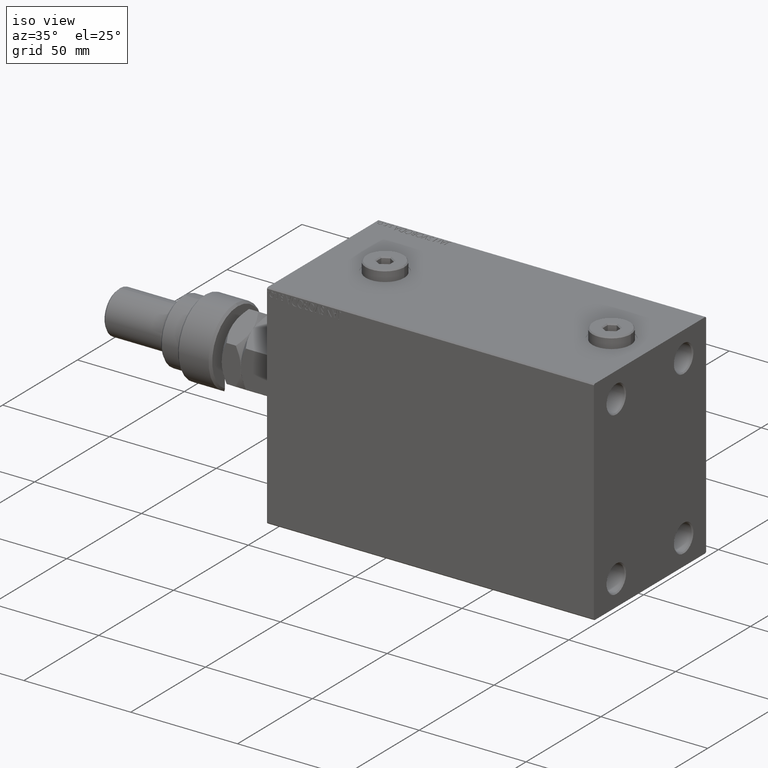
[diagram: clean part render]
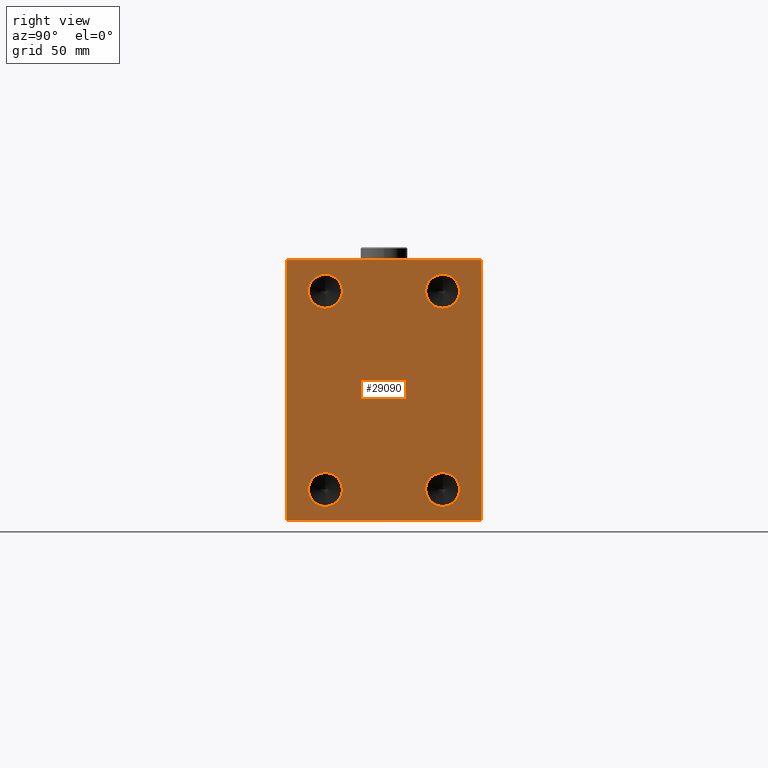
[diagram: tour spotlight — one face highlighted and labeled with its STEP entity id]
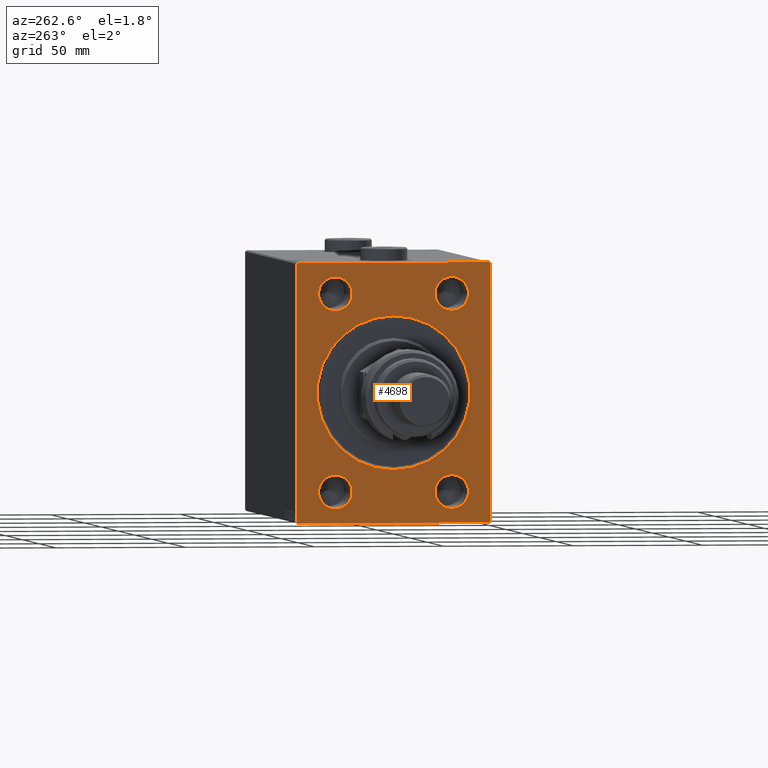
[diagram: tour spotlight — one face highlighted and labeled with its STEP entity id]
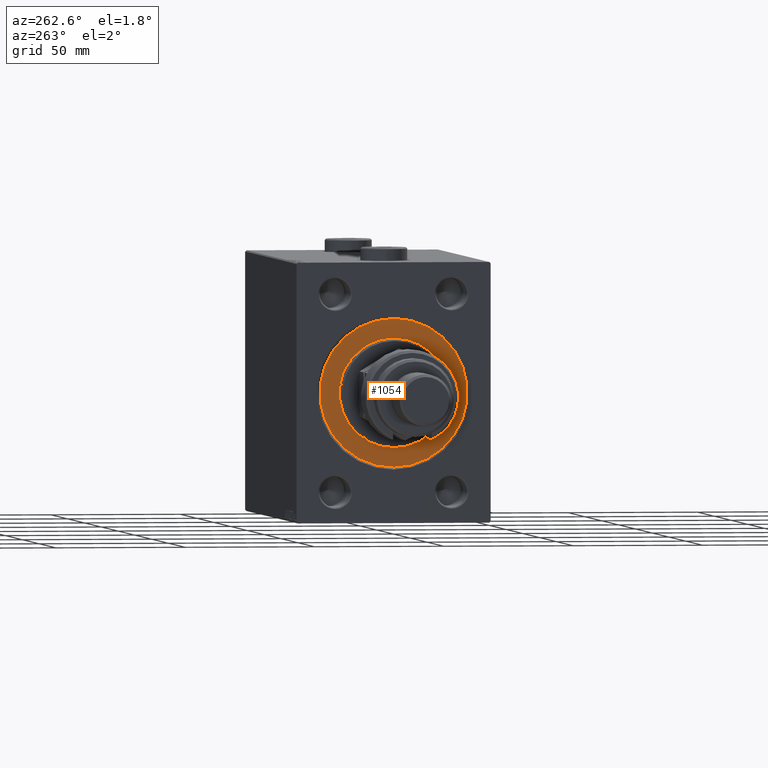
[diagram: tour spotlight — one face highlighted and labeled with its STEP entity id]
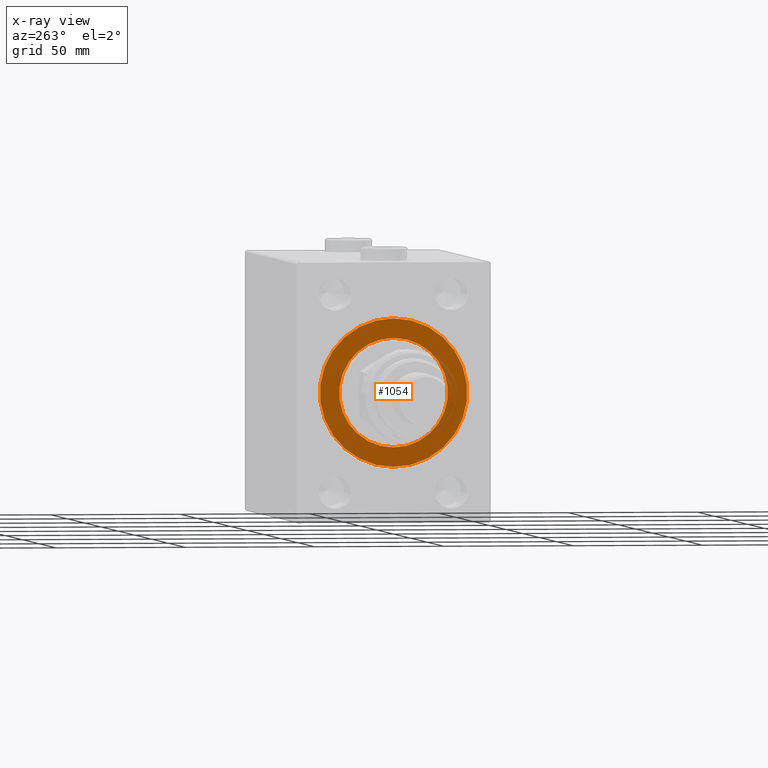
[diagram: x-ray of the same camera — body ghosted, this tour face saturated]
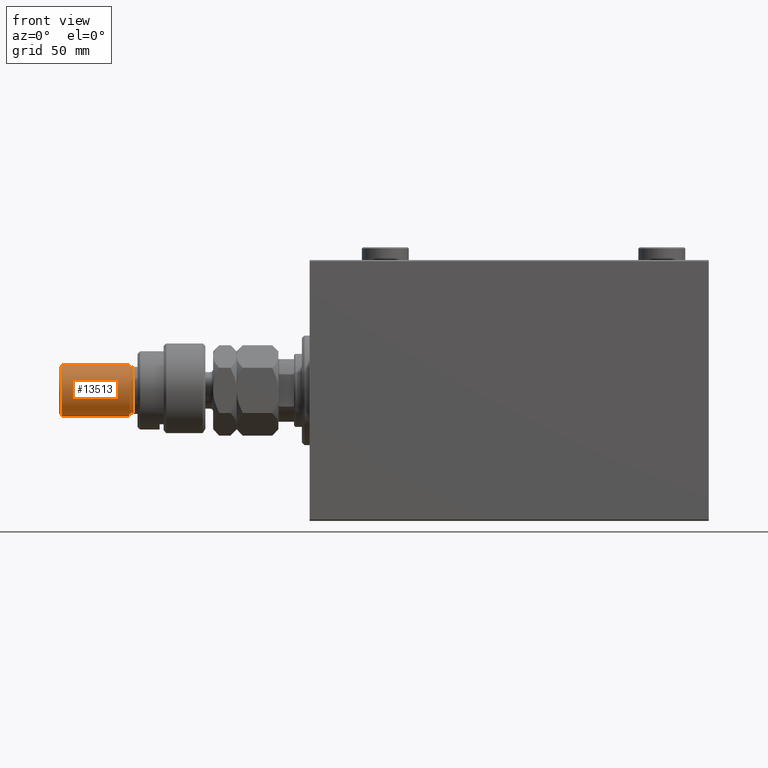
[diagram: tour spotlight — one face highlighted and labeled with its STEP entity id]
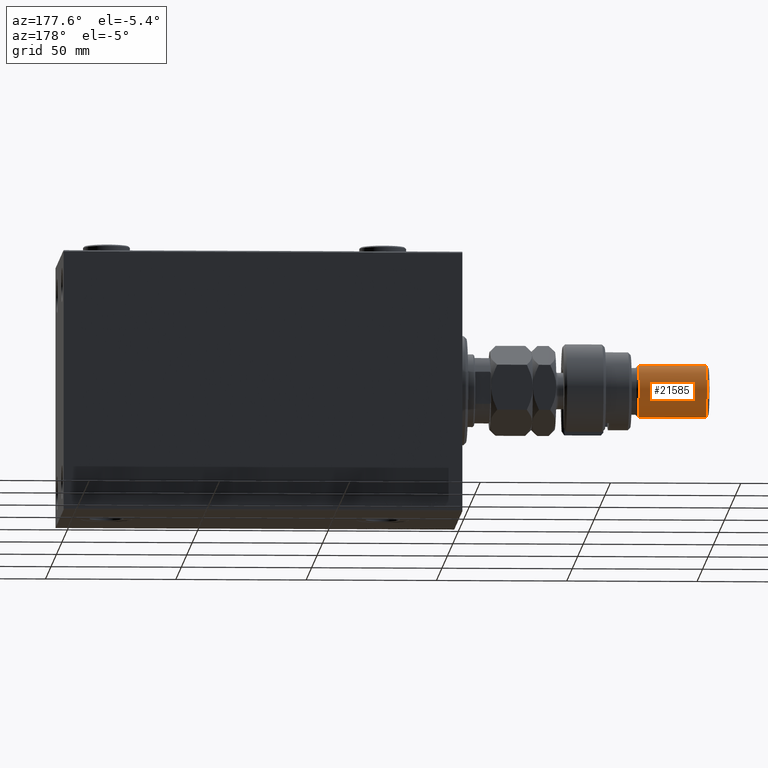
[diagram: tour spotlight — one face highlighted and labeled with its STEP entity id]
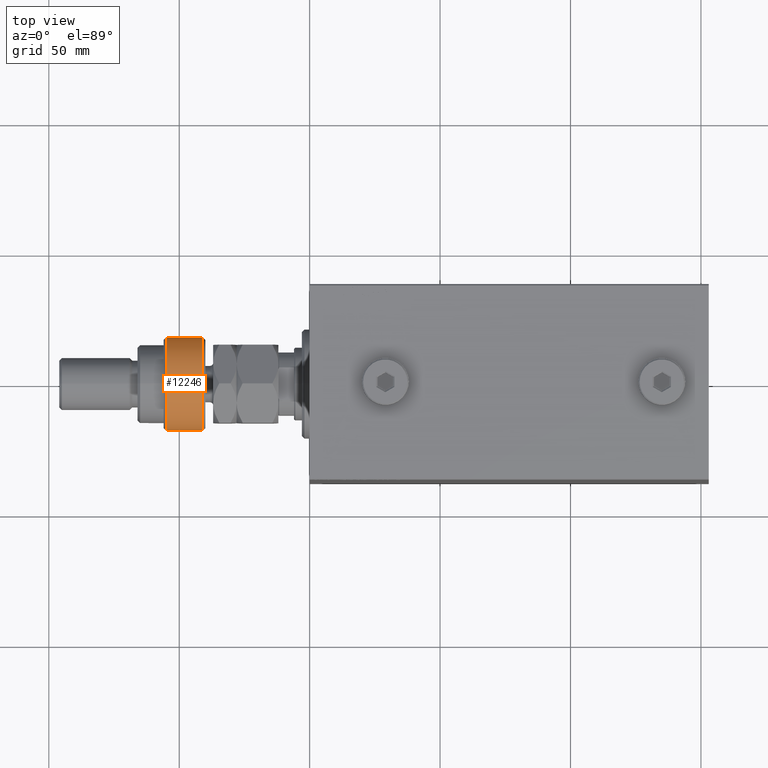
[diagram: tour spotlight — one face highlighted and labeled with its STEP entity id]
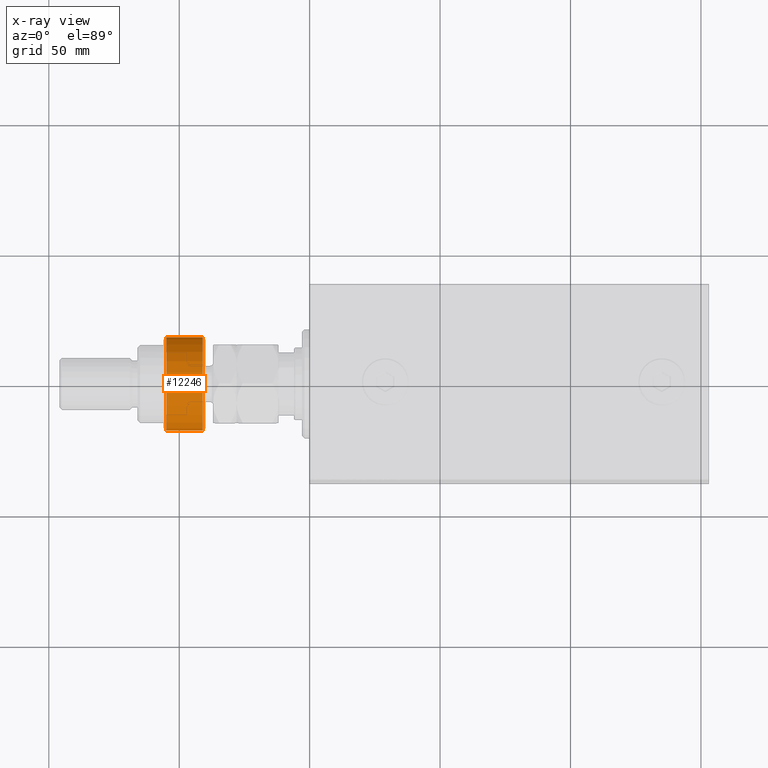
[diagram: x-ray of the same camera — body ghosted, this tour face saturated]
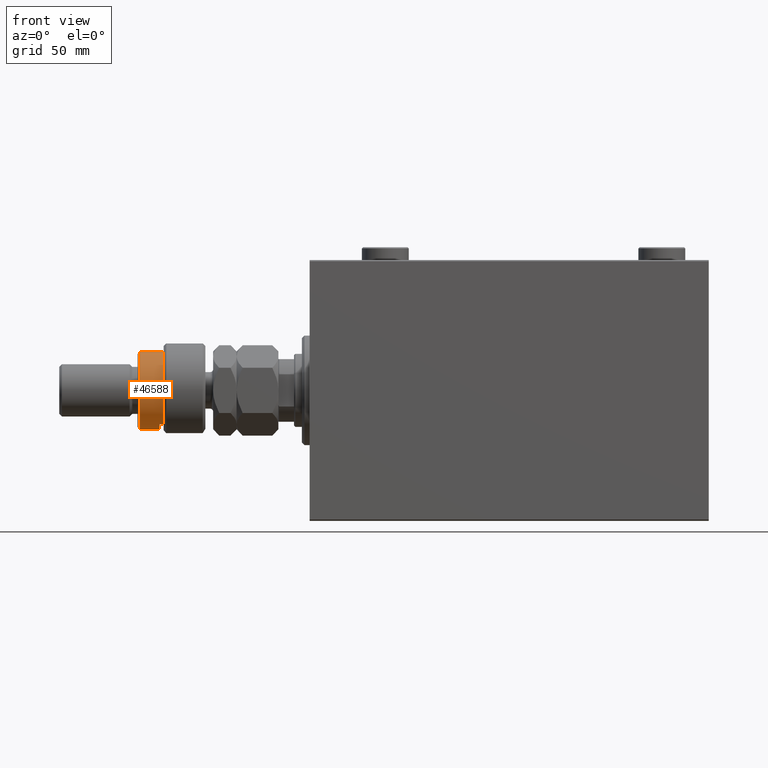
[diagram: tour spotlight — one face highlighted and labeled with its STEP entity id]
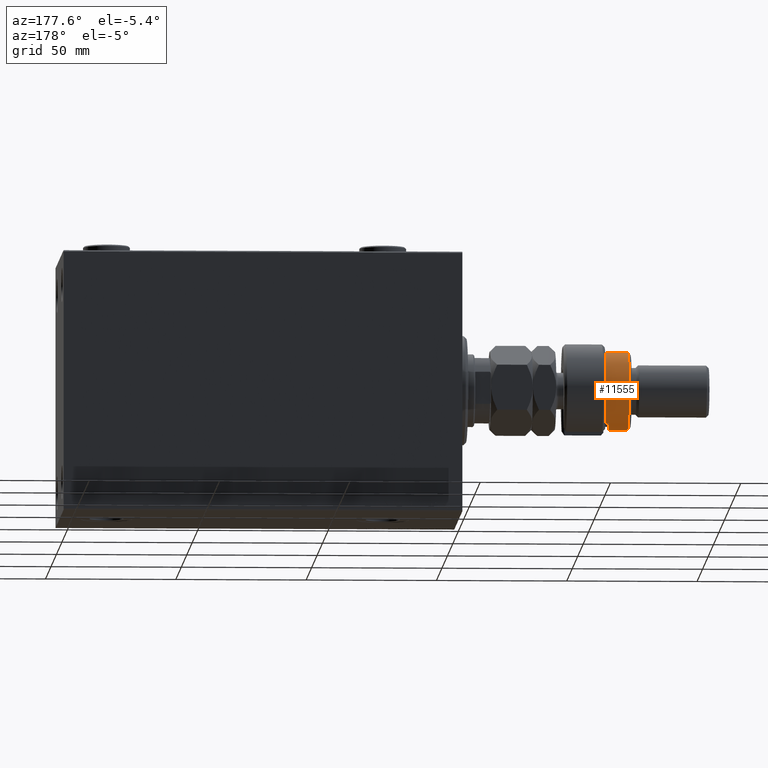
[diagram: tour spotlight — one face highlighted and labeled with its STEP entity id]
A machine part: a face-by-face anatomy tour. The part has 1023 B-rep faces; the first image is the clean iso view, then the 8 largest visible faces are spotlighted one at a time (largest first), each with its STEP entity span.

Face 1 — right view, entity #29090. In plain terms, the highlighted planar face has unit normal (1, 0, 0).
Definition (entity closure, byte-faithful):
#173 = LINE ( 'NONE', #15373, #42288 ) ;
#837 = DIRECTION ( 'NONE',  ( 0.000000000000000000, 0.000000000000000000, -1.000000000000000000 ) ) ;
#1016 = AXIS2_PLACEMENT_3D ( 'NONE', #3604, #22956, #25899 ) ;
#1073 = CARTESIAN_POINT ( 'NONE',  ( 153.0000000000000000, 43.50000000000128608, -43.49999999999826628 ) ) ;
#1182 = DIRECTION ( 'NONE',  ( 0.000000000000000000, 0.000000000000000000, -1.000000000000000000 ) ) ;
#1738 = EDGE_CURVE ( 'NONE', #30340, #21826, #22872, .T. ) ;
#1989 = FACE_OUTER_BOUND ( 'NONE', #25766, .T. ) ;
#3201 = DIRECTION ( 'NONE',  ( -0.000000000000000000, 0.7071067811865474617, -0.7071067811865474617 ) ) ;
#3604 = CARTESIAN_POINT ( 'NONE',  ( 153.0000000000000000, -22.50000000000000000, -38.00000000000000711 ) ) ;
#4046 = EDGE_CURVE ( 'NONE', #7656, #31678, #7974, .T. ) ;
#4695 = VERTEX_POINT ( 'NONE', #38695 ) ;
#5027 = VECTOR ( 'NONE', #34096, 999.9999999999998863 ) ;
#5765 = ORIENTED_EDGE ( 'NONE', *, *, #24210, .F. ) ;
#6114 = AXIS2_PLACEMENT_3D ( 'NONE', #23927, #13358, #6255 ) ;
#6255 = DIRECTION ( 'NONE',  ( 0.000000000000000000, 0.000000000000000000, -1.000000000000000000 ) ) ;
#6415 = VECTOR ( 'NONE', #38564, 1000.000000000000000 ) ;
#6425 = ORIENTED_EDGE ( 'NONE', *, *, #8942, .T. ) ;
#6529 = EDGE_CURVE ( 'NONE', #32694, #18322, #16168, .T. ) ;
#6544 = DIRECTION ( 'NONE',  ( 0.000000000000000000, -1.000000000000000000, -2.775557561562891844E-16 ) ) ;
#6555 = VECTOR ( 'NONE', #6544, 1000.000000000000000 ) ;
#7589 = EDGE_LOOP ( 'NONE', ( #44958, #17797 ) ) ;
#7656 = VERTEX_POINT ( 'NONE', #25641 ) ;
#7911 = AXIS2_PLACEMENT_3D ( 'NONE', #46901, #13026, #27968 ) ;
#7974 = LINE ( 'NONE', #8450, #22952 ) ;
#8358 = DIRECTION ( 'NONE',  ( 1.000000000000000000, -0.000000000000000000, -0.000000000000000000 ) ) ;
#8416 = DIRECTION ( 'NONE',  ( -0.000000000000000000, 0.7071067811865230368, 0.7071067811865721087 ) ) ;
#8450 = CARTESIAN_POINT ( 'NONE',  ( 153.0000000000000000, -43.49999999999869260, 43.50000000000171241 ) ) ;
#8837 = CIRCLE ( 'NONE', #1016, 6.500000000000005329 ) ;
#8942 = EDGE_CURVE ( 'NONE', #18322, #7656, #13399, .T. ) ;
#9265 = EDGE_CURVE ( 'NONE', #21826, #11525, #27523, .T. ) ;
#9299 = CARTESIAN_POINT ( 'NONE',  ( 153.0000000000000000, -22.50000000000000000, -38.00000000000000711 ) ) ;
#9828 = VERTEX_POINT ( 'NONE', #11262 ) ;
#10160 = DIRECTION ( 'NONE',  ( 0.000000000000000000, 0.000000000000000000, -1.000000000000000000 ) ) ;
#10347 = ORIENTED_EDGE ( 'NONE', *, *, #1738, .T. ) ;
#10454 = DIRECTION ( 'NONE',  ( 0.000000000000000000, 0.000000000000000000, -1.000000000000000000 ) ) ;
#11262 = CARTESIAN_POINT ( 'NONE',  ( 153.0000000000000000, 22.50000000000000000, -31.50000000000000000 ) ) ;
#11303 = CARTESIAN_POINT ( 'NONE',  ( 153.0000000000000000, 22.50000000000000000, 37.99999999999999289 ) ) ;
#11525 = VERTEX_POINT ( 'NONE', #36171 ) ;
#11968 = AXIS2_PLACEMENT_3D ( 'NONE', #25659, #24921, #10454 ) ;
#12256 = EDGE_LOOP ( 'NONE', ( #28977, #12920 ) ) ;
#12457 = CARTESIAN_POINT ( 'NONE',  ( 153.0000000000000000, -22.50000000000000000, 31.49999999999998579 ) ) ;
#12460 = CARTESIAN_POINT ( 'NONE',  ( 153.0000000000000000, 36.99999999999999289, 50.00000000000000711 ) ) ;
#12789 = FACE_BOUND ( 'NONE', #30140, .T. ) ;
#12920 = ORIENTED_EDGE ( 'NONE', *, *, #18125, .F. ) ;
#13026 = DIRECTION ( 'NONE',  ( 1.000000000000000000, 0.000000000000000000, 0.000000000000000000 ) ) ;
#13358 = DIRECTION ( 'NONE',  ( 1.000000000000000000, -0.000000000000000000, -0.000000000000000000 ) ) ;
#13399 = LINE ( 'NONE', #39438, #6555 ) ;
#14497 = CARTESIAN_POINT ( 'NONE',  ( 153.0000000000000000, 22.50000000000000000, 44.50000000000000000 ) ) ;
#14826 = CARTESIAN_POINT ( 'NONE',  ( 153.0000000000000000, -37.50000000000000000, 49.99999999999998579 ) ) ;
#15373 = CARTESIAN_POINT ( 'NONE',  ( 153.0000000000000000, 37.50000000000000711, -50.00000000000000000 ) ) ;
#15626 = CARTESIAN_POINT ( 'NONE',  ( 153.0000000000000000, -37.50000000000000000, 49.49999999999998579 ) ) ;
#16056 = EDGE_CURVE ( 'NONE', #31678, #4695, #47740, .T. ) ;
#16059 = DIRECTION ( 'NONE',  ( 0.000000000000000000, -0.7071067811865721087, -0.7071067811865230368 ) ) ;
#16164 = VERTEX_POINT ( 'NONE', #24572 ) ;
#16168 = LINE ( 'NONE', #45154, #5027 ) ;
#16670 = DIRECTION ( 'NONE',  ( 0.000000000000000000, 0.000000000000000000, -1.000000000000000000 ) ) ;
#16753 = EDGE_CURVE ( 'NONE', #24410, #35402, #38274, .T. ) ;
#17797 = ORIENTED_EDGE ( 'NONE', *, *, #37534, .F. ) ;
#18061 = CARTESIAN_POINT ( 'NONE',  ( 153.0000000000000000, 37.00000000000001421, -50.00000000000000000 ) ) ;
#18125 = EDGE_CURVE ( 'NONE', #48393, #43738, #30433, .T. ) ;
#18322 = VERTEX_POINT ( 'NONE', #12460 ) ;
#18949 = CARTESIAN_POINT ( 'NONE',  ( 153.0000000000000000, -37.50000000000000000, -50.00000000000000000 ) ) ;
#19538 = AXIS2_PLACEMENT_3D ( 'NONE', #19947, #30509, #837 ) ;
#19947 = CARTESIAN_POINT ( 'NONE',  ( 153.0000000000000000, -22.50000000000000000, 37.99999999999999289 ) ) ;
#20034 = ORIENTED_EDGE ( 'NONE', *, *, #16753, .F. ) ;
#20153 = FACE_BOUND ( 'NONE', #39734, .T. ) ;
#21031 = AXIS2_PLACEMENT_3D ( 'NONE', #9299, #39978, #24258 ) ;
#21826 = VERTEX_POINT ( 'NONE', #18061 ) ;
#21837 = LINE ( 'NONE', #36804, #31892 ) ;
#22186 = AXIS2_PLACEMENT_3D ( 'NONE', #41997, #8358, #16670 ) ;
#22872 = LINE ( 'NONE', #18949, #6415 ) ;
#22952 = VECTOR ( 'NONE', #16059, 1000.000000000000000 ) ;
#22956 = DIRECTION ( 'NONE',  ( 1.000000000000000000, -0.000000000000000000, -0.000000000000000000 ) ) ;
#23850 = EDGE_CURVE ( 'NONE', #11525, #32694, #173, .T. ) ;
#23927 = CARTESIAN_POINT ( 'NONE',  ( 153.0000000000000000, -22.50000000000000000, 37.99999999999999289 ) ) ;
#24062 = FACE_BOUND ( 'NONE', #7589, .T. ) ;
#24210 = EDGE_CURVE ( 'NONE', #35402, #24410, #48567, .T. ) ;
#24258 = DIRECTION ( 'NONE',  ( 0.000000000000000000, 0.000000000000000000, -1.000000000000000000 ) ) ;
#24410 = VERTEX_POINT ( 'NONE', #47670 ) ;
#24572 = CARTESIAN_POINT ( 'NONE',  ( 153.0000000000000000, 22.50000000000000000, 31.49999999999998579 ) ) ;
#24921 = DIRECTION ( 'NONE',  ( 1.000000000000000000, -0.000000000000000000, -0.000000000000000000 ) ) ;
#25535 = CARTESIAN_POINT ( 'NONE',  ( 153.0000000000000000, -22.50000000000000000, -31.50000000000000000 ) ) ;
#25641 = CARTESIAN_POINT ( 'NONE',  ( 153.0000000000000000, -36.99999999999996447, 49.99999999999998579 ) ) ;
#25659 = CARTESIAN_POINT ( 'NONE',  ( 153.0000000000000000, 22.50000000000000000, -38.00000000000000711 ) ) ;
#25766 = EDGE_LOOP ( 'NONE', ( #6425, #39948, #28535, #48134, #10347, #28378, #43731, #25884 ) ) ;
#25884 = ORIENTED_EDGE ( 'NONE', *, *, #6529, .T. ) ;
#25899 = DIRECTION ( 'NONE',  ( 0.000000000000000000, 0.000000000000000000, -1.000000000000000000 ) ) ;
#26162 = VECTOR ( 'NONE', #8416, 1000.000000000000000 ) ;
#26256 = DIRECTION ( 'NONE',  ( 0.000000000000000000, 0.000000000000000000, -1.000000000000000000 ) ) ;
#27089 = CARTESIAN_POINT ( 'NONE',  ( 153.0000000000000000, 37.49999999999999289, 49.50000000000000000 ) ) ;
#27523 = LINE ( 'NONE', #1073, #26162 ) ;
#27968 = DIRECTION ( 'NONE',  ( 0.000000000000000000, 0.000000000000000000, -1.000000000000000000 ) ) ;
#28354 = CIRCLE ( 'NONE', #11968, 6.500000000000005329 ) ;
#28378 = ORIENTED_EDGE ( 'NONE', *, *, #9265, .T. ) ;
#28393 = CIRCLE ( 'NONE', #34689, 6.500000000000005329 ) ;
#28535 = ORIENTED_EDGE ( 'NONE', *, *, #16056, .T. ) ;
#28977 = ORIENTED_EDGE ( 'NONE', *, *, #35693, .F. ) ;
#29090 = ADVANCED_FACE ( 'NONE', ( #20153, #12789, #42751, #24062, #1989 ), #46664, .T. ) ;
#30140 = EDGE_LOOP ( 'NONE', ( #20034, #5765 ) ) ;
#30340 = VERTEX_POINT ( 'NONE', #44645 ) ;
#30433 = CIRCLE ( 'NONE', #21031, 6.500000000000005329 ) ;
#30509 = DIRECTION ( 'NONE',  ( 1.000000000000000000, -0.000000000000000000, -0.000000000000000000 ) ) ;
#30727 = AXIS2_PLACEMENT_3D ( 'NONE', #46801, #35498, #1182 ) ;
#31678 = VERTEX_POINT ( 'NONE', #15626 ) ;
#31892 = VECTOR ( 'NONE', #3201, 1000.000000000000114 ) ;
#32694 = VERTEX_POINT ( 'NONE', #27089 ) ;
#33279 = VERTEX_POINT ( 'NONE', #14497 ) ;
#33378 = EDGE_CURVE ( 'NONE', #33279, #16164, #28393, .T. ) ;
#34096 = DIRECTION ( 'NONE',  ( -0.000000000000000000, -0.7071067811865425767, 0.7071067811865525687 ) ) ;
#34689 = AXIS2_PLACEMENT_3D ( 'NONE', #11303, #45181, #26256 ) ;
#35170 = CARTESIAN_POINT ( 'NONE',  ( 153.0000000000000000, -22.50000000000000000, -44.50000000000001421 ) ) ;
#35402 = VERTEX_POINT ( 'NONE', #12457 ) ;
#35498 = DIRECTION ( 'NONE',  ( 1.000000000000000000, -0.000000000000000000, -0.000000000000000000 ) ) ;
#35522 = EDGE_CURVE ( 'NONE', #16164, #33279, #39349, .T. ) ;
#35639 = EDGE_CURVE ( 'NONE', #9828, #46585, #28354, .T. ) ;
#35693 = EDGE_CURVE ( 'NONE', #43738, #48393, #8837, .T. ) ;
#36171 = CARTESIAN_POINT ( 'NONE',  ( 153.0000000000000000, 37.50000000000000711, -49.49999999999997158 ) ) ;
#36804 = CARTESIAN_POINT ( 'NONE',  ( 153.0000000000000000, -43.50000000000000711, -43.50000000000000711 ) ) ;
#37534 = EDGE_CURVE ( 'NONE', #46585, #9828, #44135, .T. ) ;
#38274 = CIRCLE ( 'NONE', #6114, 6.500000000000005329 ) ;
#38564 = DIRECTION ( 'NONE',  ( 0.000000000000000000, 1.000000000000000000, 0.000000000000000000 ) ) ;
#38695 = CARTESIAN_POINT ( 'NONE',  ( 153.0000000000000000, -37.50000000000000000, -49.49999999999997158 ) ) ;
#39349 = CIRCLE ( 'NONE', #30727, 6.500000000000005329 ) ;
#39438 = CARTESIAN_POINT ( 'NONE',  ( 153.0000000000000000, 37.49999999999999289, 50.00000000000000711 ) ) ;
#39690 = VECTOR ( 'NONE', #10160, 1000.000000000000000 ) ;
#39734 = EDGE_LOOP ( 'NONE', ( #43264, #40589 ) ) ;
#39948 = ORIENTED_EDGE ( 'NONE', *, *, #4046, .T. ) ;
#39978 = DIRECTION ( 'NONE',  ( 1.000000000000000000, -0.000000000000000000, -0.000000000000000000 ) ) ;
#40589 = ORIENTED_EDGE ( 'NONE', *, *, #35522, .F. ) ;
#41997 = CARTESIAN_POINT ( 'NONE',  ( 153.0000000000000000, 22.50000000000000000, -38.00000000000000711 ) ) ;
#42288 = VECTOR ( 'NONE', #48528, 1000.000000000000000 ) ;
#42751 = FACE_BOUND ( 'NONE', #12256, .T. ) ;
#43264 = ORIENTED_EDGE ( 'NONE', *, *, #33378, .F. ) ;
#43731 = ORIENTED_EDGE ( 'NONE', *, *, #23850, .T. ) ;
#43738 = VERTEX_POINT ( 'NONE', #25535 ) ;
#44135 = CIRCLE ( 'NONE', #22186, 6.500000000000005329 ) ;
#44645 = CARTESIAN_POINT ( 'NONE',  ( 153.0000000000000000, -37.00000000000000000, -50.00000000000000000 ) ) ;
#44958 = ORIENTED_EDGE ( 'NONE', *, *, #35639, .F. ) ;
#45154 = CARTESIAN_POINT ( 'NONE',  ( 153.0000000000000000, 43.50000000000026290, 43.49999999999965894 ) ) ;
#45181 = DIRECTION ( 'NONE',  ( 1.000000000000000000, -0.000000000000000000, -0.000000000000000000 ) ) ;
#45459 = CARTESIAN_POINT ( 'NONE',  ( 153.0000000000000000, 22.50000000000000000, -44.50000000000001421 ) ) ;
#46585 = VERTEX_POINT ( 'NONE', #45459 ) ;
#46664 = PLANE ( 'NONE',  #7911 ) ;
#46801 = CARTESIAN_POINT ( 'NONE',  ( 153.0000000000000000, 22.50000000000000000, 37.99999999999999289 ) ) ;
#46901 = CARTESIAN_POINT ( 'NONE',  ( 153.0000000000000000, 0.000000000000000000, 0.000000000000000000 ) ) ;
#47670 = CARTESIAN_POINT ( 'NONE',  ( 153.0000000000000000, -22.50000000000000000, 44.50000000000000000 ) ) ;
#47740 = LINE ( 'NONE', #14826, #39690 ) ;
#47996 = EDGE_CURVE ( 'NONE', #4695, #30340, #21837, .T. ) ;
#48134 = ORIENTED_EDGE ( 'NONE', *, *, #47996, .T. ) ;
#48393 = VERTEX_POINT ( 'NONE', #35170 ) ;
#48528 = DIRECTION ( 'NONE',  ( 0.000000000000000000, -1.387778780781445676E-16, 1.000000000000000000 ) ) ;
#48567 = CIRCLE ( 'NONE', #19538, 6.500000000000005329 ) ;

Face 2 — auxiliary view, entity #4698. In plain terms, the highlighted planar face has unit normal (1, 0, 0).
Definition (entity closure, byte-faithful):
#345 = VERTEX_POINT ( 'NONE', #11151 ) ;
#391 = CARTESIAN_POINT ( 'NONE',  ( 0.000000000000000000, 37.50000000000000711, -49.49999999999997158 ) ) ;
#678 = VERTEX_POINT ( 'NONE', #28016 ) ;
#1012 = AXIS2_PLACEMENT_3D ( 'NONE', #41065, #18959, #26308 ) ;
#1029 = EDGE_CURVE ( 'NONE', #345, #31413, #33030, .T. ) ;
#1423 = EDGE_CURVE ( 'NONE', #678, #2042, #20522, .T. ) ;
#1640 = FACE_BOUND ( 'NONE', #39213, .T. ) ;
#1706 = DIRECTION ( 'NONE',  ( 0.000000000000000000, 0.000000000000000000, -1.000000000000000000 ) ) ;
#1752 = CARTESIAN_POINT ( 'NONE',  ( 0.000000000000000000, 0.000000000000000000, 29.50000000000002842 ) ) ;
#1768 = ORIENTED_EDGE ( 'NONE', *, *, #17470, .T. ) ;
#1799 = ORIENTED_EDGE ( 'NONE', *, *, #41645, .T. ) ;
#1853 = EDGE_CURVE ( 'NONE', #2042, #678, #37777, .T. ) ;
#1936 = VERTEX_POINT ( 'NONE', #7128 ) ;
#2042 = VERTEX_POINT ( 'NONE', #35781 ) ;
#2368 = LINE ( 'NONE', #28843, #32752 ) ;
#2791 = EDGE_CURVE ( 'NONE', #27735, #28613, #35442, .T. ) ;
#3793 = CIRCLE ( 'NONE', #11624, 6.500000000000005329 ) ;
#4698 = ADVANCED_FACE ( 'NONE', ( #5093, #20280, #1640, #46315, #27149, #12919 ), #42156, .F. ) ;
#4699 = CARTESIAN_POINT ( 'NONE',  ( 0.000000000000000000, 22.50000000000000000, 31.49999999999998579 ) ) ;
#4834 = DIRECTION ( 'NONE',  ( -0.000000000000000000, 0.7071067811865721087, 0.7071067811865230368 ) ) ;
#5081 = VERTEX_POINT ( 'NONE', #5504 ) ;
#5093 = FACE_BOUND ( 'NONE', #42955, .T. ) ;
#5103 = EDGE_LOOP ( 'NONE', ( #18908, #37154 ) ) ;
#5504 = CARTESIAN_POINT ( 'NONE',  ( 0.000000000000000000, 36.99999999999999289, 50.00000000000000711 ) ) ;
#5506 = CARTESIAN_POINT ( 'NONE',  ( 0.000000000000000000, -22.50000000000000000, -38.00000000000000711 ) ) ;
#5557 = VERTEX_POINT ( 'NONE', #8533 ) ;
#6842 = VERTEX_POINT ( 'NONE', #16112 ) ;
#6875 = DIRECTION ( 'NONE',  ( 0.000000000000000000, 0.000000000000000000, -1.000000000000000000 ) ) ;
#7128 = CARTESIAN_POINT ( 'NONE',  ( 0.000000000000000000, -22.50000000000000000, 31.49999999999998579 ) ) ;
#7524 = VERTEX_POINT ( 'NONE', #26664 ) ;
#8171 = ORIENTED_EDGE ( 'NONE', *, *, #36148, .F. ) ;
#8470 = VECTOR ( 'NONE', #13331, 1000.000000000000000 ) ;
#8533 = CARTESIAN_POINT ( 'NONE',  ( 0.000000000000000000, 37.49999999999999289, 49.50000000000000000 ) ) ;
#8615 = LINE ( 'NONE', #23803, #33996 ) ;
#9706 = ORIENTED_EDGE ( 'NONE', *, *, #20714, .F. ) ;
#9990 = DIRECTION ( 'NONE',  ( 1.000000000000000000, 0.000000000000000000, 0.000000000000000000 ) ) ;
#10084 = LINE ( 'NONE', #28232, #34684 ) ;
#10399 = CARTESIAN_POINT ( 'NONE',  ( 0.000000000000000000, -36.99999999999996447, 49.99999999999998579 ) ) ;
#11151 = CARTESIAN_POINT ( 'NONE',  ( 0.000000000000000000, -22.50000000000000000, -31.50000000000000000 ) ) ;
#11259 = VECTOR ( 'NONE', #46232, 1000.000000000000000 ) ;
#11624 = AXIS2_PLACEMENT_3D ( 'NONE', #45193, #18242, #11805 ) ;
#11805 = DIRECTION ( 'NONE',  ( 0.000000000000000000, 0.000000000000000000, -1.000000000000000000 ) ) ;
#11834 = DIRECTION ( 'NONE',  ( 0.000000000000000000, -0.7071067811865230368, -0.7071067811865721087 ) ) ;
#11881 = LINE ( 'NONE', #30763, #40550 ) ;
#12076 = AXIS2_PLACEMENT_3D ( 'NONE', #16459, #34391, #30941 ) ;
#12146 = CARTESIAN_POINT ( 'NONE',  ( 0.000000000000000000, 3.612708057484695548E-15, -29.50000000000002842 ) ) ;
#12195 = LINE ( 'NONE', #41906, #14271 ) ;
#12212 = LINE ( 'NONE', #43288, #8470 ) ;
#12675 = DIRECTION ( 'NONE',  ( 1.000000000000000000, 0.000000000000000000, 0.000000000000000000 ) ) ;
#12919 = FACE_OUTER_BOUND ( 'NONE', #13741, .T. ) ;
#13331 = DIRECTION ( 'NONE',  ( 0.000000000000000000, -1.387778780781445676E-16, 1.000000000000000000 ) ) ;
#13470 = AXIS2_PLACEMENT_3D ( 'NONE', #17925, #21852, #28697 ) ;
#13741 = EDGE_LOOP ( 'NONE', ( #8171, #31832, #39545, #36380, #9706, #1799, #36169, #1768 ) ) ;
#13985 = CARTESIAN_POINT ( 'NONE',  ( 0.000000000000000000, -22.50000000000000000, -38.00000000000000711 ) ) ;
#14271 = VECTOR ( 'NONE', #4834, 1000.000000000000000 ) ;
#15993 = CIRCLE ( 'NONE', #12076, 6.500000000000005329 ) ;
#16001 = CARTESIAN_POINT ( 'NONE',  ( 0.000000000000000000, 37.50000000000000711, -49.49999999999997158 ) ) ;
#16097 = ORIENTED_EDGE ( 'NONE', *, *, #2791, .T. ) ;
#16112 = CARTESIAN_POINT ( 'NONE',  ( 0.000000000000000000, -37.50000000000000000, -49.49999999999997158 ) ) ;
#16286 = DIRECTION ( 'NONE',  ( 0.000000000000000000, 1.000000000000000000, 0.000000000000000000 ) ) ;
#16365 = CARTESIAN_POINT ( 'NONE',  ( 0.000000000000000000, 0.000000000000000000, 0.000000000000000000 ) ) ;
#16459 = CARTESIAN_POINT ( 'NONE',  ( 0.000000000000000000, 22.50000000000000000, 37.99999999999999289 ) ) ;
#16514 = LINE ( 'NONE', #30995, #11259 ) ;
#16970 = EDGE_CURVE ( 'NONE', #38172, #1936, #27285, .T. ) ;
#17318 = DIRECTION ( 'NONE',  ( 1.000000000000000000, 0.000000000000000000, 0.000000000000000000 ) ) ;
#17470 = EDGE_CURVE ( 'NONE', #42903, #6842, #2368, .T. ) ;
#17925 = CARTESIAN_POINT ( 'NONE',  ( 0.000000000000000000, 22.50000000000000000, -38.00000000000000711 ) ) ;
#18196 = AXIS2_PLACEMENT_3D ( 'NONE', #31605, #46613, #42215 ) ;
#18242 = DIRECTION ( 'NONE',  ( 1.000000000000000000, 0.000000000000000000, 0.000000000000000000 ) ) ;
#18908 = ORIENTED_EDGE ( 'NONE', *, *, #1423, .T. ) ;
#18959 = DIRECTION ( 'NONE',  ( 1.000000000000000000, 0.000000000000000000, 0.000000000000000000 ) ) ;
#19591 = VERTEX_POINT ( 'NONE', #10399 ) ;
#19603 = CIRCLE ( 'NONE', #41554, 6.500000000000005329 ) ;
#19761 = AXIS2_PLACEMENT_3D ( 'NONE', #47318, #9990, #36252 ) ;
#20280 = FACE_BOUND ( 'NONE', #30660, .T. ) ;
#20522 = CIRCLE ( 'NONE', #19761, 6.500000000000005329 ) ;
#20714 = EDGE_CURVE ( 'NONE', #32818, #5557, #12212, .T. ) ;
#21852 = DIRECTION ( 'NONE',  ( 1.000000000000000000, 0.000000000000000000, 0.000000000000000000 ) ) ;
#21876 = ORIENTED_EDGE ( 'NONE', *, *, #1029, .T. ) ;
#22071 = EDGE_CURVE ( 'NONE', #1936, #38172, #3793, .T. ) ;
#22985 = AXIS2_PLACEMENT_3D ( 'NONE', #16365, #12675, #31313 ) ;
#23568 = DIRECTION ( 'NONE',  ( -0.000000000000000000, 0.7071067811865425767, -0.7071067811865525687 ) ) ;
#23631 = CARTESIAN_POINT ( 'NONE',  ( 0.000000000000000000, -22.50000000000000000, -44.50000000000001421 ) ) ;
#23803 = CARTESIAN_POINT ( 'NONE',  ( 0.000000000000000000, 36.99999999999999289, 50.00000000000000711 ) ) ;
#23944 = ORIENTED_EDGE ( 'NONE', *, *, #39590, .T. ) ;
#24127 = EDGE_LOOP ( 'NONE', ( #23944, #16097 ) ) ;
#26308 = DIRECTION ( 'NONE',  ( 0.000000000000000000, 0.000000000000000000, -1.000000000000000000 ) ) ;
#26511 = EDGE_CURVE ( 'NONE', #31413, #345, #19603, .T. ) ;
#26664 = CARTESIAN_POINT ( 'NONE',  ( 0.000000000000000000, -37.50000000000000000, 49.49999999999998579 ) ) ;
#27149 = FACE_BOUND ( 'NONE', #5103, .T. ) ;
#27285 = CIRCLE ( 'NONE', #37477, 6.500000000000005329 ) ;
#27735 = VERTEX_POINT ( 'NONE', #4699 ) ;
#28016 = CARTESIAN_POINT ( 'NONE',  ( 0.000000000000000000, 22.50000000000000000, -31.50000000000000000 ) ) ;
#28232 = CARTESIAN_POINT ( 'NONE',  ( 0.000000000000000000, -37.50000000000000000, 49.99999999999998579 ) ) ;
#28613 = VERTEX_POINT ( 'NONE', #29856 ) ;
#28697 = DIRECTION ( 'NONE',  ( 0.000000000000000000, 0.000000000000000000, -1.000000000000000000 ) ) ;
#28843 = CARTESIAN_POINT ( 'NONE',  ( 0.000000000000000000, -37.00000000000000000, -50.00000000000000000 ) ) ;
#29184 = DIRECTION ( 'NONE',  ( 1.000000000000000000, 0.000000000000000000, 0.000000000000000000 ) ) ;
#29574 = DIRECTION ( 'NONE',  ( -0.000000000000000000, -0.7071067811865474617, 0.7071067811865474617 ) ) ;
#29749 = EDGE_CURVE ( 'NONE', #32789, #32322, #40094, .T. ) ;
#29856 = CARTESIAN_POINT ( 'NONE',  ( 0.000000000000000000, 22.50000000000000000, 44.50000000000000000 ) ) ;
#30660 = EDGE_LOOP ( 'NONE', ( #21876, #38144 ) ) ;
#30668 = AXIS2_PLACEMENT_3D ( 'NONE', #43587, #17318, #32270 ) ;
#30763 = CARTESIAN_POINT ( 'NONE',  ( 0.000000000000000000, -37.50000000000000000, -50.00000000000000000 ) ) ;
#30941 = DIRECTION ( 'NONE',  ( 0.000000000000000000, 0.000000000000000000, -1.000000000000000000 ) ) ;
#30995 = CARTESIAN_POINT ( 'NONE',  ( 0.000000000000000000, 37.49999999999999289, 50.00000000000000711 ) ) ;
#31313 = DIRECTION ( 'NONE',  ( 0.000000000000000000, 0.000000000000000000, -1.000000000000000000 ) ) ;
#31413 = VERTEX_POINT ( 'NONE', #23631 ) ;
#31605 = CARTESIAN_POINT ( 'NONE',  ( 0.000000000000000000, 0.000000000000000000, 0.000000000000000000 ) ) ;
#31684 = EDGE_CURVE ( 'NONE', #7524, #19591, #12195, .T. ) ;
#31832 = ORIENTED_EDGE ( 'NONE', *, *, #31684, .T. ) ;
#31978 = DIRECTION ( 'NONE',  ( 1.000000000000000000, 0.000000000000000000, 0.000000000000000000 ) ) ;
#32167 = DIRECTION ( 'NONE',  ( 0.000000000000000000, 0.000000000000000000, -1.000000000000000000 ) ) ;
#32270 = DIRECTION ( 'NONE',  ( 0.000000000000000000, 0.000000000000000000, -1.000000000000000000 ) ) ;
#32322 = VERTEX_POINT ( 'NONE', #1752 ) ;
#32520 = EDGE_CURVE ( 'NONE', #32322, #32789, #39353, .T. ) ;
#32664 = CARTESIAN_POINT ( 'NONE',  ( 0.000000000000000000, -22.50000000000000000, 44.50000000000000000 ) ) ;
#32752 = VECTOR ( 'NONE', #29574, 1000.000000000000114 ) ;
#32789 = VERTEX_POINT ( 'NONE', #12146 ) ;
#32818 = VERTEX_POINT ( 'NONE', #391 ) ;
#33030 = CIRCLE ( 'NONE', #36967, 6.500000000000005329 ) ;
#33996 = VECTOR ( 'NONE', #23568, 999.9999999999998863 ) ;
#34391 = DIRECTION ( 'NONE',  ( 1.000000000000000000, 0.000000000000000000, 0.000000000000000000 ) ) ;
#34684 = VECTOR ( 'NONE', #32167, 1000.000000000000000 ) ;
#35113 = LINE ( 'NONE', #16001, #41163 ) ;
#35146 = ORIENTED_EDGE ( 'NONE', *, *, #32520, .T. ) ;
#35429 = DIRECTION ( 'NONE',  ( 0.000000000000000000, 0.000000000000000000, -1.000000000000000000 ) ) ;
#35442 = CIRCLE ( 'NONE', #1012, 6.500000000000005329 ) ;
#35781 = CARTESIAN_POINT ( 'NONE',  ( 0.000000000000000000, 22.50000000000000000, -44.50000000000001421 ) ) ;
#36148 = EDGE_CURVE ( 'NONE', #7524, #6842, #10084, .T. ) ;
#36169 = ORIENTED_EDGE ( 'NONE', *, *, #48373, .F. ) ;
#36252 = DIRECTION ( 'NONE',  ( 0.000000000000000000, 0.000000000000000000, -1.000000000000000000 ) ) ;
#36380 = ORIENTED_EDGE ( 'NONE', *, *, #38742, .T. ) ;
#36967 = AXIS2_PLACEMENT_3D ( 'NONE', #13985, #29184, #6875 ) ;
#36997 = VERTEX_POINT ( 'NONE', #38890 ) ;
#37154 = ORIENTED_EDGE ( 'NONE', *, *, #1853, .T. ) ;
#37477 = AXIS2_PLACEMENT_3D ( 'NONE', #46624, #42709, #1706 ) ;
#37777 = CIRCLE ( 'NONE', #13470, 6.500000000000005329 ) ;
#38144 = ORIENTED_EDGE ( 'NONE', *, *, #26511, .T. ) ;
#38172 = VERTEX_POINT ( 'NONE', #32664 ) ;
#38742 = EDGE_CURVE ( 'NONE', #5081, #5557, #8615, .T. ) ;
#38890 = CARTESIAN_POINT ( 'NONE',  ( 0.000000000000000000, 37.00000000000001421, -50.00000000000000000 ) ) ;
#39144 = EDGE_CURVE ( 'NONE', #5081, #19591, #16514, .T. ) ;
#39213 = EDGE_LOOP ( 'NONE', ( #42055, #44569 ) ) ;
#39353 = CIRCLE ( 'NONE', #18196, 29.50000000000002842 ) ;
#39545 = ORIENTED_EDGE ( 'NONE', *, *, #39144, .F. ) ;
#39590 = EDGE_CURVE ( 'NONE', #28613, #27735, #15993, .T. ) ;
#40094 = CIRCLE ( 'NONE', #30668, 29.50000000000002842 ) ;
#40288 = ORIENTED_EDGE ( 'NONE', *, *, #29749, .T. ) ;
#40550 = VECTOR ( 'NONE', #16286, 1000.000000000000000 ) ;
#41065 = CARTESIAN_POINT ( 'NONE',  ( 0.000000000000000000, 22.50000000000000000, 37.99999999999999289 ) ) ;
#41163 = VECTOR ( 'NONE', #11834, 1000.000000000000000 ) ;
#41554 = AXIS2_PLACEMENT_3D ( 'NONE', #5506, #31978, #35429 ) ;
#41645 = EDGE_CURVE ( 'NONE', #32818, #36997, #35113, .T. ) ;
#41906 = CARTESIAN_POINT ( 'NONE',  ( 0.000000000000000000, -37.50000000000000000, 49.49999999999998579 ) ) ;
#42055 = ORIENTED_EDGE ( 'NONE', *, *, #16970, .T. ) ;
#42156 = PLANE ( 'NONE',  #22985 ) ;
#42215 = DIRECTION ( 'NONE',  ( 0.000000000000000000, 0.000000000000000000, -1.000000000000000000 ) ) ;
#42645 = CARTESIAN_POINT ( 'NONE',  ( 0.000000000000000000, -37.00000000000000000, -50.00000000000000000 ) ) ;
#42709 = DIRECTION ( 'NONE',  ( 1.000000000000000000, 0.000000000000000000, 0.000000000000000000 ) ) ;
#42903 = VERTEX_POINT ( 'NONE', #42645 ) ;
#42955 = EDGE_LOOP ( 'NONE', ( #35146, #40288 ) ) ;
#43288 = CARTESIAN_POINT ( 'NONE',  ( 0.000000000000000000, 37.50000000000000711, -50.00000000000000000 ) ) ;
#43587 = CARTESIAN_POINT ( 'NONE',  ( 0.000000000000000000, 0.000000000000000000, 0.000000000000000000 ) ) ;
#44569 = ORIENTED_EDGE ( 'NONE', *, *, #22071, .T. ) ;
#45193 = CARTESIAN_POINT ( 'NONE',  ( 0.000000000000000000, -22.50000000000000000, 37.99999999999999289 ) ) ;
#46232 = DIRECTION ( 'NONE',  ( 0.000000000000000000, -1.000000000000000000, -2.775557561562891844E-16 ) ) ;
#46315 = FACE_BOUND ( 'NONE', #24127, .T. ) ;
#46613 = DIRECTION ( 'NONE',  ( 1.000000000000000000, 0.000000000000000000, 0.000000000000000000 ) ) ;
#46624 = CARTESIAN_POINT ( 'NONE',  ( 0.000000000000000000, -22.50000000000000000, 37.99999999999999289 ) ) ;
#47318 = CARTESIAN_POINT ( 'NONE',  ( 0.000000000000000000, 22.50000000000000000, -38.00000000000000711 ) ) ;
#48373 = EDGE_CURVE ( 'NONE', #42903, #36997, #11881, .T. ) ;

Face 3 — auxiliary view, entity #1054. An x-ray twin of the same camera follows (body ghosted, this face saturated) — the face is partly hidden behind the body. In plain terms, the highlighted planar face has unit normal (1, -0, -0).
Definition (entity closure, byte-faithful):
#1054 = ADVANCED_FACE ( 'NONE', ( #47870, #14226 ), #10790, .F. ) ;
#2084 = DIRECTION ( 'NONE',  ( 1.000000000000000000, -0.000000000000000000, 0.000000000000000000 ) ) ;
#2461 = DIRECTION ( 'NONE',  ( -1.000000000000000000, 0.000000000000000000, 0.000000000000000000 ) ) ;
#3077 = CARTESIAN_POINT ( 'NONE',  ( 0.000000000000000000, 0.000000000000000000, 0.000000000000000000 ) ) ;
#3886 = EDGE_LOOP ( 'NONE', ( #47026, #31521 ) ) ;
#4531 = AXIS2_PLACEMENT_3D ( 'NONE', #26841, #15809, #45281 ) ;
#5837 = VERTEX_POINT ( 'NONE', #37963 ) ;
#6145 = CARTESIAN_POINT ( 'NONE',  ( 0.000000000000000000, 0.000000000000000000, 0.000000000000000000 ) ) ;
#6579 = CARTESIAN_POINT ( 'NONE',  ( 0.000000000000000000, 2.571758278209441661E-15, -21.00000000000000000 ) ) ;
#7462 = VERTEX_POINT ( 'NONE', #6579 ) ;
#9293 = AXIS2_PLACEMENT_3D ( 'NONE', #35691, #2084, #17041 ) ;
#10774 = CIRCLE ( 'NONE', #9293, 21.00000000000000000 ) ;
#10790 = PLANE ( 'NONE',  #43236 ) ;
#12456 = EDGE_CURVE ( 'NONE', #5837, #48367, #32529, .T. ) ;
#14226 = FACE_OUTER_BOUND ( 'NONE', #26360, .T. ) ;
#15165 = DIRECTION ( 'NONE',  ( 1.000000000000000000, -0.000000000000000000, 0.000000000000000000 ) ) ;
#15809 = DIRECTION ( 'NONE',  ( -1.000000000000000000, 0.000000000000000000, 0.000000000000000000 ) ) ;
#17041 = DIRECTION ( 'NONE',  ( 0.000000000000000000, 0.000000000000000000, -1.000000000000000000 ) ) ;
#19522 = EDGE_CURVE ( 'NONE', #7462, #21823, #10774, .T. ) ;
#19830 = EDGE_CURVE ( 'NONE', #48367, #5837, #25654, .T. ) ;
#20365 = CIRCLE ( 'NONE', #47823, 21.00000000000000000 ) ;
#21823 = VERTEX_POINT ( 'NONE', #34006 ) ;
#22427 = ORIENTED_EDGE ( 'NONE', *, *, #12456, .F. ) ;
#24671 = AXIS2_PLACEMENT_3D ( 'NONE', #3077, #43811, #36922 ) ;
#24801 = ORIENTED_EDGE ( 'NONE', *, *, #19830, .F. ) ;
#25654 = CIRCLE ( 'NONE', #4531, 28.50000000000000000 ) ;
#25898 = EDGE_CURVE ( 'NONE', #21823, #7462, #20365, .T. ) ;
#26360 = EDGE_LOOP ( 'NONE', ( #22427, #24801 ) ) ;
#26841 = CARTESIAN_POINT ( 'NONE',  ( 0.000000000000000000, 0.000000000000000000, 0.000000000000000000 ) ) ;
#30120 = DIRECTION ( 'NONE',  ( 0.000000000000000000, 0.000000000000000000, -1.000000000000000000 ) ) ;
#31521 = ORIENTED_EDGE ( 'NONE', *, *, #19522, .F. ) ;
#32529 = CIRCLE ( 'NONE', #24671, 28.50000000000000000 ) ;
#33114 = DIRECTION ( 'NONE',  ( 0.000000000000000000, 0.000000000000000000, 1.000000000000000000 ) ) ;
#34006 = CARTESIAN_POINT ( 'NONE',  ( 0.000000000000000000, 0.000000000000000000, 21.00000000000000000 ) ) ;
#35691 = CARTESIAN_POINT ( 'NONE',  ( 0.000000000000000000, 0.000000000000000000, 0.000000000000000000 ) ) ;
#36922 = DIRECTION ( 'NONE',  ( 0.000000000000000000, 0.000000000000000000, 1.000000000000000000 ) ) ;
#37963 = CARTESIAN_POINT ( 'NONE',  ( 0.000000000000000000, 0.000000000000000000, -28.50000000000000000 ) ) ;
#43236 = AXIS2_PLACEMENT_3D ( 'NONE', #6145, #2461, #33114 ) ;
#43811 = DIRECTION ( 'NONE',  ( -1.000000000000000000, 0.000000000000000000, 0.000000000000000000 ) ) ;
#45119 = CARTESIAN_POINT ( 'NONE',  ( 0.000000000000000000, 0.000000000000000000, 0.000000000000000000 ) ) ;
#45281 = DIRECTION ( 'NONE',  ( 0.000000000000000000, 0.000000000000000000, 1.000000000000000000 ) ) ;
#45517 = CARTESIAN_POINT ( 'NONE',  ( 0.000000000000000000, 3.490243377569956456E-15, 28.50000000000000000 ) ) ;
#47026 = ORIENTED_EDGE ( 'NONE', *, *, #25898, .F. ) ;
#47823 = AXIS2_PLACEMENT_3D ( 'NONE', #45119, #15165, #30120 ) ;
#47870 = FACE_BOUND ( 'NONE', #3886, .T. ) ;
#48367 = VERTEX_POINT ( 'NONE', #45517 ) ;

Face 4 — front view, entity #13513. In plain terms, the highlighted cylindrical surface (edge-blend (fillet) strip) has radius 10 mm, axis along (1, -0, -0).
Definition (entity closure, byte-faithful):
#338 = CIRCLE ( 'NONE', #27717, 10.00000000000000000 ) ;
#1072 = CIRCLE ( 'NONE', #13574, 10.00000000000000000 ) ;
#1923 = ORIENTED_EDGE ( 'NONE', *, *, #2448, .F. ) ;
#2448 = EDGE_CURVE ( 'NONE', #7570, #26131, #8228, .T. ) ;
#4068 = DIRECTION ( 'NONE',  ( -0.000000000000000000, -0.000000000000000000, -1.000000000000000000 ) ) ;
#4481 = DIRECTION ( 'NONE',  ( -0.000000000000000000, -0.000000000000000000, -1.000000000000000000 ) ) ;
#5015 = DIRECTION ( 'NONE',  ( -1.000000000000000000, 0.000000000000000000, 0.000000000000000000 ) ) ;
#5820 = VERTEX_POINT ( 'NONE', #16998 ) ;
#6658 = VECTOR ( 'NONE', #4481, 1000.000000000000000 ) ;
#7570 = VERTEX_POINT ( 'NONE', #35721 ) ;
#8151 = CARTESIAN_POINT ( 'NONE',  ( -10.00000000000000000, 0.000000000000000000, 56.00000000000000711 ) ) ;
#8228 = LINE ( 'NONE', #22699, #27619 ) ;
#8637 = EDGE_CURVE ( 'NONE', #26947, #26131, #1072, .T. ) ;
#9595 = DIRECTION ( 'NONE',  ( 1.000000000000000000, 0.000000000000000000, 0.000000000000000000 ) ) ;
#10984 = EDGE_CURVE ( 'NONE', #7570, #5820, #338, .T. ) ;
#12582 = ORIENTED_EDGE ( 'NONE', *, *, #8637, .T. ) ;
#12986 = EDGE_CURVE ( 'NONE', #5820, #26947, #16225, .T. ) ;
#13513 = ADVANCED_FACE ( 'NONE', ( #46010 ), #31951, .T. ) ;
#13574 = AXIS2_PLACEMENT_3D ( 'NONE', #28719, #20171, #9595 ) ;
#16225 = LINE ( 'NONE', #8151, #6658 ) ;
#16998 = CARTESIAN_POINT ( 'NONE',  ( -10.00000000000000000, 0.000000000000000000, 54.99999999999998579 ) ) ;
#17115 = DIRECTION ( 'NONE',  ( 0.000000000000000000, 0.000000000000000000, -1.000000000000000000 ) ) ;
#20171 = DIRECTION ( 'NONE',  ( -0.000000000000000000, -0.000000000000000000, 1.000000000000000000 ) ) ;
#20652 = ORIENTED_EDGE ( 'NONE', *, *, #10984, .T. ) ;
#22600 = CARTESIAN_POINT ( 'NONE',  ( -10.00000000000000000, 0.000000000000000000, 29.00000000000000711 ) ) ;
#22699 = CARTESIAN_POINT ( 'NONE',  ( 10.00000000000000000, 1.224646799147353256E-15, 56.00000000000000711 ) ) ;
#23876 = DIRECTION ( 'NONE',  ( -0.000000000000000000, -0.000000000000000000, -1.000000000000000000 ) ) ;
#24424 = CARTESIAN_POINT ( 'NONE',  ( 10.00000000000000000, 1.224646799147353256E-15, 29.00000000000000711 ) ) ;
#24702 = AXIS2_PLACEMENT_3D ( 'NONE', #46714, #23876, #5015 ) ;
#26131 = VERTEX_POINT ( 'NONE', #24424 ) ;
#26947 = VERTEX_POINT ( 'NONE', #22600 ) ;
#27619 = VECTOR ( 'NONE', #4068, 1000.000000000000000 ) ;
#27717 = AXIS2_PLACEMENT_3D ( 'NONE', #43142, #17115, #31583 ) ;
#28719 = CARTESIAN_POINT ( 'NONE',  ( 0.000000000000000000, 0.000000000000000000, 29.00000000000000711 ) ) ;
#31583 = DIRECTION ( 'NONE',  ( 1.000000000000000000, 0.000000000000000000, 0.000000000000000000 ) ) ;
#31951 = CYLINDRICAL_SURFACE ( 'NONE', #24702, 10.00000000000000000 ) ;
#33943 = ORIENTED_EDGE ( 'NONE', *, *, #12986, .T. ) ;
#35721 = CARTESIAN_POINT ( 'NONE',  ( 10.00000000000000000, 1.224646799147353256E-15, 54.99999999999998579 ) ) ;
#42689 = EDGE_LOOP ( 'NONE', ( #1923, #20652, #33943, #12582 ) ) ;
#43142 = CARTESIAN_POINT ( 'NONE',  ( 0.000000000000000000, 0.000000000000000000, 54.99999999999998579 ) ) ;
#46010 = FACE_OUTER_BOUND ( 'NONE', #42689, .T. ) ;
#46714 = CARTESIAN_POINT ( 'NONE',  ( 0.000000000000000000, 0.000000000000000000, 56.00000000000000711 ) ) ;

Face 5 — auxiliary view, entity #21585. In plain terms, the highlighted cylindrical surface (edge-blend (fillet) strip) has radius 10 mm, axis along (1, -0, -0).
Definition (entity closure, byte-faithful):
#711 = CARTESIAN_POINT ( 'NONE',  ( 0.000000000000000000, 0.000000000000000000, 56.00000000000000711 ) ) ;
#2128 = ORIENTED_EDGE ( 'NONE', *, *, #12986, .F. ) ;
#2334 = DIRECTION ( 'NONE',  ( 0.000000000000000000, 0.000000000000000000, -1.000000000000000000 ) ) ;
#2448 = EDGE_CURVE ( 'NONE', #7570, #26131, #8228, .T. ) ;
#2832 = DIRECTION ( 'NONE',  ( 1.000000000000000000, 0.000000000000000000, 0.000000000000000000 ) ) ;
#4068 = DIRECTION ( 'NONE',  ( -0.000000000000000000, -0.000000000000000000, -1.000000000000000000 ) ) ;
#4481 = DIRECTION ( 'NONE',  ( -0.000000000000000000, -0.000000000000000000, -1.000000000000000000 ) ) ;
#4863 = DIRECTION ( 'NONE',  ( -1.000000000000000000, 0.000000000000000000, 0.000000000000000000 ) ) ;
#5820 = VERTEX_POINT ( 'NONE', #16998 ) ;
#6124 = EDGE_CURVE ( 'NONE', #5820, #7570, #7373, .T. ) ;
#6658 = VECTOR ( 'NONE', #4481, 1000.000000000000000 ) ;
#7373 = CIRCLE ( 'NONE', #18326, 10.00000000000000000 ) ;
#7570 = VERTEX_POINT ( 'NONE', #35721 ) ;
#8151 = CARTESIAN_POINT ( 'NONE',  ( -10.00000000000000000, 0.000000000000000000, 56.00000000000000711 ) ) ;
#8228 = LINE ( 'NONE', #22699, #27619 ) ;
#10414 = CARTESIAN_POINT ( 'NONE',  ( 0.000000000000000000, 0.000000000000000000, 54.99999999999998579 ) ) ;
#12986 = EDGE_CURVE ( 'NONE', #5820, #26947, #16225, .T. ) ;
#16225 = LINE ( 'NONE', #8151, #6658 ) ;
#16998 = CARTESIAN_POINT ( 'NONE',  ( -10.00000000000000000, 0.000000000000000000, 54.99999999999998579 ) ) ;
#18326 = AXIS2_PLACEMENT_3D ( 'NONE', #10414, #2334, #2832 ) ;
#18480 = ORIENTED_EDGE ( 'NONE', *, *, #6124, .T. ) ;
#19578 = CYLINDRICAL_SURFACE ( 'NONE', #23382, 10.00000000000000000 ) ;
#20293 = FACE_OUTER_BOUND ( 'NONE', #45933, .T. ) ;
#21585 = ADVANCED_FACE ( 'NONE', ( #20293 ), #19578, .T. ) ;
#22251 = ORIENTED_EDGE ( 'NONE', *, *, #2448, .T. ) ;
#22600 = CARTESIAN_POINT ( 'NONE',  ( -10.00000000000000000, 0.000000000000000000, 29.00000000000000711 ) ) ;
#22699 = CARTESIAN_POINT ( 'NONE',  ( 10.00000000000000000, 1.224646799147353256E-15, 56.00000000000000711 ) ) ;
#23382 = AXIS2_PLACEMENT_3D ( 'NONE', #711, #38229, #4863 ) ;
#23626 = DIRECTION ( 'NONE',  ( 1.000000000000000000, 0.000000000000000000, 0.000000000000000000 ) ) ;
#24424 = CARTESIAN_POINT ( 'NONE',  ( 10.00000000000000000, 1.224646799147353256E-15, 29.00000000000000711 ) ) ;
#26131 = VERTEX_POINT ( 'NONE', #24424 ) ;
#26899 = AXIS2_PLACEMENT_3D ( 'NONE', #27538, #42555, #23626 ) ;
#26947 = VERTEX_POINT ( 'NONE', #22600 ) ;
#27538 = CARTESIAN_POINT ( 'NONE',  ( 0.000000000000000000, 0.000000000000000000, 29.00000000000000711 ) ) ;
#27619 = VECTOR ( 'NONE', #4068, 1000.000000000000000 ) ;
#30058 = CIRCLE ( 'NONE', #26899, 10.00000000000000000 ) ;
#35721 = CARTESIAN_POINT ( 'NONE',  ( 10.00000000000000000, 1.224646799147353256E-15, 54.99999999999998579 ) ) ;
#38229 = DIRECTION ( 'NONE',  ( -0.000000000000000000, -0.000000000000000000, -1.000000000000000000 ) ) ;
#39156 = EDGE_CURVE ( 'NONE', #26131, #26947, #30058, .T. ) ;
#42555 = DIRECTION ( 'NONE',  ( -0.000000000000000000, -0.000000000000000000, 1.000000000000000000 ) ) ;
#45518 = ORIENTED_EDGE ( 'NONE', *, *, #39156, .T. ) ;
#45933 = EDGE_LOOP ( 'NONE', ( #18480, #22251, #45518, #2128 ) ) ;

Face 6 — top view, entity #12246. An x-ray twin of the same camera follows (body ghosted, this face saturated) — the face is partly hidden behind the body. In plain terms, the highlighted cylindrical surface (partial cylindrical patch) has radius 18 mm, axis along (1, -0, -0).
Definition (entity closure, byte-faithful):
#1049 = VECTOR ( 'NONE', #21997, 1000.000000000000000 ) ;
#3327 = ORIENTED_EDGE ( 'NONE', *, *, #21606, .T. ) ;
#3442 = DIRECTION ( 'NONE',  ( 1.000000000000000000, 0.000000000000000000, 0.000000000000000000 ) ) ;
#3677 = ORIENTED_EDGE ( 'NONE', *, *, #11940, .T. ) ;
#5878 = CARTESIAN_POINT ( 'NONE',  ( -16.36306817195357155, -7.500000000000000000, 1.000000000000011324 ) ) ;
#6070 = CARTESIAN_POINT ( 'NONE',  ( 0.000000000000000000, 0.000000000000000000, 14.99999999999999645 ) ) ;
#6885 = CARTESIAN_POINT ( 'NONE',  ( 0.000000000000000000, 0.000000000000000000, 1.000000000000011324 ) ) ;
#9233 = LINE ( 'NONE', #31326, #14770 ) ;
#10536 = DIRECTION ( 'NONE',  ( -0.000000000000000000, -0.000000000000000000, 1.000000000000000000 ) ) ;
#11354 = AXIS2_PLACEMENT_3D ( 'NONE', #28244, #10536, #3442 ) ;
#11940 = EDGE_CURVE ( 'NONE', #22150, #24985, #43474, .T. ) ;
#12045 = LINE ( 'NONE', #32105, #1049 ) ;
#12246 = ADVANCED_FACE ( 'NONE', ( #14161 ), #13912, .T. ) ;
#12999 = CIRCLE ( 'NONE', #32608, 18.00000000000000000 ) ;
#13912 = CYLINDRICAL_SURFACE ( 'NONE', #41960, 18.00000000000000000 ) ;
#14161 = FACE_OUTER_BOUND ( 'NONE', #18705, .T. ) ;
#14726 = DIRECTION ( 'NONE',  ( -0.000000000000000000, -0.000000000000000000, 1.000000000000000000 ) ) ;
#14770 = VECTOR ( 'NONE', #27875, 1000.000000000000000 ) ;
#15806 = VERTEX_POINT ( 'NONE', #26881 ) ;
#16156 = DIRECTION ( 'NONE',  ( 0.000000000000000000, 0.000000000000000000, -1.000000000000000000 ) ) ;
#18495 = CARTESIAN_POINT ( 'NONE',  ( -16.36306817195357155, 7.500000000000000000, 1.000000000000011324 ) ) ;
#18705 = EDGE_LOOP ( 'NONE', ( #31376, #43901, #3327, #3677, #19346 ) ) ;
#19346 = ORIENTED_EDGE ( 'NONE', *, *, #29153, .T. ) ;
#20426 = CIRCLE ( 'NONE', #26735, 18.00000000000000000 ) ;
#21454 = CARTESIAN_POINT ( 'NONE',  ( -16.36306817195357155, 7.500000000000000000, 14.99999999999999645 ) ) ;
#21606 = EDGE_CURVE ( 'NONE', #15806, #22150, #9233, .T. ) ;
#21997 = DIRECTION ( 'NONE',  ( -0.000000000000000000, -0.000000000000000000, -1.000000000000000000 ) ) ;
#22150 = VERTEX_POINT ( 'NONE', #5878 ) ;
#22260 = DIRECTION ( 'NONE',  ( -1.000000000000000000, 0.000000000000000000, 0.000000000000000000 ) ) ;
#22341 = DIRECTION ( 'NONE',  ( 1.000000000000000000, 0.000000000000000000, 0.000000000000000000 ) ) ;
#23229 = VERTEX_POINT ( 'NONE', #18495 ) ;
#24013 = VERTEX_POINT ( 'NONE', #21454 ) ;
#24985 = VERTEX_POINT ( 'NONE', #48229 ) ;
#26735 = AXIS2_PLACEMENT_3D ( 'NONE', #6885, #14726, #22341 ) ;
#26881 = CARTESIAN_POINT ( 'NONE',  ( -16.36306817195357155, -7.500000000000000000, 14.99999999999999645 ) ) ;
#27875 = DIRECTION ( 'NONE',  ( -0.000000000000000000, -0.000000000000000000, -1.000000000000000000 ) ) ;
#28244 = CARTESIAN_POINT ( 'NONE',  ( 0.000000000000000000, 0.000000000000000000, 1.000000000000011324 ) ) ;
#28869 = CARTESIAN_POINT ( 'NONE',  ( 0.000000000000000000, 0.000000000000000000, 16.00000000000000000 ) ) ;
#29153 = EDGE_CURVE ( 'NONE', #24985, #23229, #20426, .T. ) ;
#31326 = CARTESIAN_POINT ( 'NONE',  ( -16.36306817195357155, -7.500000000000000000, 17.50000000000000000 ) ) ;
#31376 = ORIENTED_EDGE ( 'NONE', *, *, #37649, .F. ) ;
#32105 = CARTESIAN_POINT ( 'NONE',  ( -16.36306817195357155, 7.500000000000000000, 17.50000000000000000 ) ) ;
#32608 = AXIS2_PLACEMENT_3D ( 'NONE', #6070, #16156, #46110 ) ;
#37649 = EDGE_CURVE ( 'NONE', #24013, #23229, #12045, .T. ) ;
#41960 = AXIS2_PLACEMENT_3D ( 'NONE', #28869, #44120, #22260 ) ;
#43474 = CIRCLE ( 'NONE', #11354, 18.00000000000000000 ) ;
#43901 = ORIENTED_EDGE ( 'NONE', *, *, #44821, .T. ) ;
#44120 = DIRECTION ( 'NONE',  ( -0.000000000000000000, -0.000000000000000000, -1.000000000000000000 ) ) ;
#44821 = EDGE_CURVE ( 'NONE', #24013, #15806, #12999, .T. ) ;
#46110 = DIRECTION ( 'NONE',  ( 1.000000000000000000, 0.000000000000000000, 0.000000000000000000 ) ) ;
#48229 = CARTESIAN_POINT ( 'NONE',  ( 18.00000000000000000, 0.000000000000000000, 1.000000000000011324 ) ) ;

Face 7 — front view, entity #46588. In plain terms, the highlighted cylindrical surface (partial cylindrical patch) has radius 15 mm, axis along (1, -0, -0).
Definition (entity closure, byte-faithful):
#66 = DIRECTION ( 'NONE',  ( -1.000000000000000000, 0.000000000000000000, 0.000000000000000000 ) ) ;
#168 = AXIS2_PLACEMENT_3D ( 'NONE', #35706, #16571, #5302 ) ;
#242 = CARTESIAN_POINT ( 'NONE',  ( -15.00000000000000000, 0.000000000000000000, 17.50000000000000000 ) ) ;
#269 = EDGE_CURVE ( 'NONE', #25848, #28775, #22072, .T. ) ;
#658 = ORIENTED_EDGE ( 'NONE', *, *, #8610, .T. ) ;
#5139 = ORIENTED_EDGE ( 'NONE', *, *, #17029, .F. ) ;
#5302 = DIRECTION ( 'NONE',  ( 1.000000000000000000, 0.000000000000000000, 0.000000000000000000 ) ) ;
#5519 = ORIENTED_EDGE ( 'NONE', *, *, #48025, .T. ) ;
#7328 = DIRECTION ( 'NONE',  ( -0.000000000000000000, -0.000000000000000000, -1.000000000000000000 ) ) ;
#7381 = VECTOR ( 'NONE', #45827, 1000.000000000000000 ) ;
#7421 = CYLINDRICAL_SURFACE ( 'NONE', #9217, 15.00000000000000000 ) ;
#7564 = ORIENTED_EDGE ( 'NONE', *, *, #10592, .F. ) ;
#8610 = EDGE_CURVE ( 'NONE', #43647, #14398, #30820, .T. ) ;
#8739 = CARTESIAN_POINT ( 'NONE',  ( -12.99038105676658006, -7.500000000000000000, 26.00000000000000355 ) ) ;
#9217 = AXIS2_PLACEMENT_3D ( 'NONE', #22385, #33666, #66 ) ;
#9350 = CARTESIAN_POINT ( 'NONE',  ( 15.00000000000000000, 1.836970198721029589E-15, 24.99999999999997868 ) ) ;
#10008 = CARTESIAN_POINT ( 'NONE',  ( -12.99038105676658006, -7.500000000000000000, 16.00000000000000000 ) ) ;
#10251 = ORIENTED_EDGE ( 'NONE', *, *, #40256, .T. ) ;
#10592 = EDGE_CURVE ( 'NONE', #12564, #10677, #24597, .T. ) ;
#10677 = VERTEX_POINT ( 'NONE', #242 ) ;
#12564 = VERTEX_POINT ( 'NONE', #26588 ) ;
#12982 = LINE ( 'NONE', #35554, #34353 ) ;
#14398 = VERTEX_POINT ( 'NONE', #35317 ) ;
#15862 = LINE ( 'NONE', #8739, #7381 ) ;
#16571 = DIRECTION ( 'NONE',  ( 0.000000000000000000, 0.000000000000000000, 1.000000000000000000 ) ) ;
#16869 = EDGE_LOOP ( 'NONE', ( #5139, #658, #5519, #7564, #10251, #39937 ) ) ;
#16973 = DIRECTION ( 'NONE',  ( 0.000000000000000000, 0.000000000000000000, -1.000000000000000000 ) ) ;
#17029 = EDGE_CURVE ( 'NONE', #43647, #28775, #12982, .T. ) ;
#20367 = DIRECTION ( 'NONE',  ( 0.000000000000000000, 0.000000000000000000, -1.000000000000000000 ) ) ;
#20646 = CARTESIAN_POINT ( 'NONE',  ( 0.000000000000000000, 0.000000000000000000, 24.99999999999997868 ) ) ;
#22072 = CIRCLE ( 'NONE', #168, 15.00000000000000000 ) ;
#22385 = CARTESIAN_POINT ( 'NONE',  ( 0.000000000000000000, 0.000000000000000000, 26.00000000000000355 ) ) ;
#24597 = CIRCLE ( 'NONE', #31640, 15.00000000000000000 ) ;
#25848 = VERTEX_POINT ( 'NONE', #10008 ) ;
#25982 = LINE ( 'NONE', #40986, #41450 ) ;
#26588 = CARTESIAN_POINT ( 'NONE',  ( -12.99038105676658006, -7.500000000000000000, 17.50000000000000000 ) ) ;
#28775 = VERTEX_POINT ( 'NONE', #47761 ) ;
#29668 = DIRECTION ( 'NONE',  ( -0.000000000000000000, -0.000000000000000000, -1.000000000000000000 ) ) ;
#30820 = CIRCLE ( 'NONE', #30931, 15.00000000000000000 ) ;
#30931 = AXIS2_PLACEMENT_3D ( 'NONE', #20646, #16973, #31918 ) ;
#31640 = AXIS2_PLACEMENT_3D ( 'NONE', #47606, #20367, #35328 ) ;
#31918 = DIRECTION ( 'NONE',  ( 1.000000000000000000, 0.000000000000000000, 0.000000000000000000 ) ) ;
#33666 = DIRECTION ( 'NONE',  ( -0.000000000000000000, -0.000000000000000000, -1.000000000000000000 ) ) ;
#34353 = VECTOR ( 'NONE', #7328, 1000.000000000000000 ) ;
#35317 = CARTESIAN_POINT ( 'NONE',  ( -15.00000000000000000, 0.000000000000000000, 24.99999999999997868 ) ) ;
#35328 = DIRECTION ( 'NONE',  ( -1.000000000000000000, 0.000000000000000000, 0.000000000000000000 ) ) ;
#35554 = CARTESIAN_POINT ( 'NONE',  ( 15.00000000000000000, 1.836970198721029589E-15, 26.00000000000000355 ) ) ;
#35706 = CARTESIAN_POINT ( 'NONE',  ( 0.000000000000000000, 0.000000000000000000, 16.00000000000000000 ) ) ;
#39937 = ORIENTED_EDGE ( 'NONE', *, *, #269, .T. ) ;
#40256 = EDGE_CURVE ( 'NONE', #12564, #25848, #15862, .T. ) ;
#40986 = CARTESIAN_POINT ( 'NONE',  ( -15.00000000000000000, 0.000000000000000000, 26.00000000000000355 ) ) ;
#41047 = FACE_OUTER_BOUND ( 'NONE', #16869, .T. ) ;
#41450 = VECTOR ( 'NONE', #29668, 1000.000000000000000 ) ;
#43647 = VERTEX_POINT ( 'NONE', #9350 ) ;
#45827 = DIRECTION ( 'NONE',  ( -0.000000000000000000, -0.000000000000000000, -1.000000000000000000 ) ) ;
#46588 = ADVANCED_FACE ( 'NONE', ( #41047 ), #7421, .T. ) ;
#47606 = CARTESIAN_POINT ( 'NONE',  ( 0.000000000000000000, 0.000000000000000000, 17.50000000000000000 ) ) ;
#47761 = CARTESIAN_POINT ( 'NONE',  ( 15.00000000000000000, 1.836970198721029589E-15, 16.00000000000000000 ) ) ;
#48025 = EDGE_CURVE ( 'NONE', #14398, #10677, #25982, .T. ) ;

Face 8 — auxiliary view, entity #11555. In plain terms, the highlighted cylindrical surface (partial cylindrical patch) has radius 15 mm, axis along (1, -0, -0).
Definition (entity closure, byte-faithful):
#127 = LINE ( 'NONE', #19004, #42788 ) ;
#242 = CARTESIAN_POINT ( 'NONE',  ( -15.00000000000000000, 0.000000000000000000, 17.50000000000000000 ) ) ;
#2831 = CARTESIAN_POINT ( 'NONE',  ( -12.99038105676658006, 7.500000000000000000, 17.50000000000000000 ) ) ;
#3102 = EDGE_LOOP ( 'NONE', ( #44276, #15688, #38024, #32447, #7830, #11906 ) ) ;
#4701 = VERTEX_POINT ( 'NONE', #27861 ) ;
#5192 = DIRECTION ( 'NONE',  ( 1.000000000000000000, 0.000000000000000000, 0.000000000000000000 ) ) ;
#5767 = DIRECTION ( 'NONE',  ( -0.000000000000000000, -0.000000000000000000, -1.000000000000000000 ) ) ;
#6744 = CARTESIAN_POINT ( 'NONE',  ( 0.000000000000000000, 0.000000000000000000, 26.00000000000000355 ) ) ;
#7328 = DIRECTION ( 'NONE',  ( -0.000000000000000000, -0.000000000000000000, -1.000000000000000000 ) ) ;
#7830 = ORIENTED_EDGE ( 'NONE', *, *, #39801, .F. ) ;
#8324 = DIRECTION ( 'NONE',  ( -1.000000000000000000, 0.000000000000000000, 0.000000000000000000 ) ) ;
#9350 = CARTESIAN_POINT ( 'NONE',  ( 15.00000000000000000, 1.836970198721029589E-15, 24.99999999999997868 ) ) ;
#10677 = VERTEX_POINT ( 'NONE', #242 ) ;
#11555 = ADVANCED_FACE ( 'NONE', ( #44304 ), #25614, .T. ) ;
#11906 = ORIENTED_EDGE ( 'NONE', *, *, #48025, .F. ) ;
#12484 = CARTESIAN_POINT ( 'NONE',  ( 0.000000000000000000, 0.000000000000000000, 17.50000000000000000 ) ) ;
#12527 = VERTEX_POINT ( 'NONE', #2831 ) ;
#12982 = LINE ( 'NONE', #35554, #34353 ) ;
#13463 = EDGE_CURVE ( 'NONE', #4701, #12527, #127, .T. ) ;
#14398 = VERTEX_POINT ( 'NONE', #35317 ) ;
#15688 = ORIENTED_EDGE ( 'NONE', *, *, #17029, .T. ) ;
#15744 = AXIS2_PLACEMENT_3D ( 'NONE', #31182, #46183, #5192 ) ;
#17029 = EDGE_CURVE ( 'NONE', #43647, #28775, #12982, .T. ) ;
#18393 = AXIS2_PLACEMENT_3D ( 'NONE', #6744, #5767, #21205 ) ;
#19004 = CARTESIAN_POINT ( 'NONE',  ( -12.99038105676658006, 7.500000000000000000, 26.00000000000000355 ) ) ;
#21205 = DIRECTION ( 'NONE',  ( -1.000000000000000000, 0.000000000000000000, 0.000000000000000000 ) ) ;
#25614 = CYLINDRICAL_SURFACE ( 'NONE', #18393, 15.00000000000000000 ) ;
#25982 = LINE ( 'NONE', #40986, #41450 ) ;
#25996 = AXIS2_PLACEMENT_3D ( 'NONE', #31081, #27395, #42407 ) ;
#26172 = CIRCLE ( 'NONE', #41085, 15.00000000000000000 ) ;
#26833 = DIRECTION ( 'NONE',  ( 0.000000000000000000, 0.000000000000000000, 1.000000000000000000 ) ) ;
#27395 = DIRECTION ( 'NONE',  ( 0.000000000000000000, 0.000000000000000000, 1.000000000000000000 ) ) ;
#27861 = CARTESIAN_POINT ( 'NONE',  ( -12.99038105676658006, 7.500000000000000000, 16.00000000000000000 ) ) ;
#28178 = EDGE_CURVE ( 'NONE', #14398, #43647, #47104, .T. ) ;
#28775 = VERTEX_POINT ( 'NONE', #47761 ) ;
#29668 = DIRECTION ( 'NONE',  ( -0.000000000000000000, -0.000000000000000000, -1.000000000000000000 ) ) ;
#30616 = EDGE_CURVE ( 'NONE', #28775, #4701, #31481, .T. ) ;
#31081 = CARTESIAN_POINT ( 'NONE',  ( 0.000000000000000000, 0.000000000000000000, 16.00000000000000000 ) ) ;
#31182 = CARTESIAN_POINT ( 'NONE',  ( 0.000000000000000000, 0.000000000000000000, 24.99999999999997868 ) ) ;
#31481 = CIRCLE ( 'NONE', #25996, 15.00000000000000000 ) ;
#32447 = ORIENTED_EDGE ( 'NONE', *, *, #13463, .T. ) ;
#34353 = VECTOR ( 'NONE', #7328, 1000.000000000000000 ) ;
#35317 = CARTESIAN_POINT ( 'NONE',  ( -15.00000000000000000, 0.000000000000000000, 24.99999999999997868 ) ) ;
#35554 = CARTESIAN_POINT ( 'NONE',  ( 15.00000000000000000, 1.836970198721029589E-15, 26.00000000000000355 ) ) ;
#38024 = ORIENTED_EDGE ( 'NONE', *, *, #30616, .T. ) ;
#39801 = EDGE_CURVE ( 'NONE', #10677, #12527, #26172, .T. ) ;
#40986 = CARTESIAN_POINT ( 'NONE',  ( -15.00000000000000000, 0.000000000000000000, 26.00000000000000355 ) ) ;
#41085 = AXIS2_PLACEMENT_3D ( 'NONE', #12484, #42439, #8324 ) ;
#41450 = VECTOR ( 'NONE', #29668, 1000.000000000000000 ) ;
#42407 = DIRECTION ( 'NONE',  ( 1.000000000000000000, 0.000000000000000000, 0.000000000000000000 ) ) ;
#42439 = DIRECTION ( 'NONE',  ( 0.000000000000000000, 0.000000000000000000, -1.000000000000000000 ) ) ;
#42788 = VECTOR ( 'NONE', #26833, 1000.000000000000000 ) ;
#43647 = VERTEX_POINT ( 'NONE', #9350 ) ;
#44276 = ORIENTED_EDGE ( 'NONE', *, *, #28178, .T. ) ;
#44304 = FACE_OUTER_BOUND ( 'NONE', #3102, .T. ) ;
#46183 = DIRECTION ( 'NONE',  ( 0.000000000000000000, 0.000000000000000000, -1.000000000000000000 ) ) ;
#47104 = CIRCLE ( 'NONE', #15744, 15.00000000000000000 ) ;
#47761 = CARTESIAN_POINT ( 'NONE',  ( 15.00000000000000000, 1.836970198721029589E-15, 16.00000000000000000 ) ) ;
#48025 = EDGE_CURVE ( 'NONE', #14398, #10677, #25982, .T. ) ;